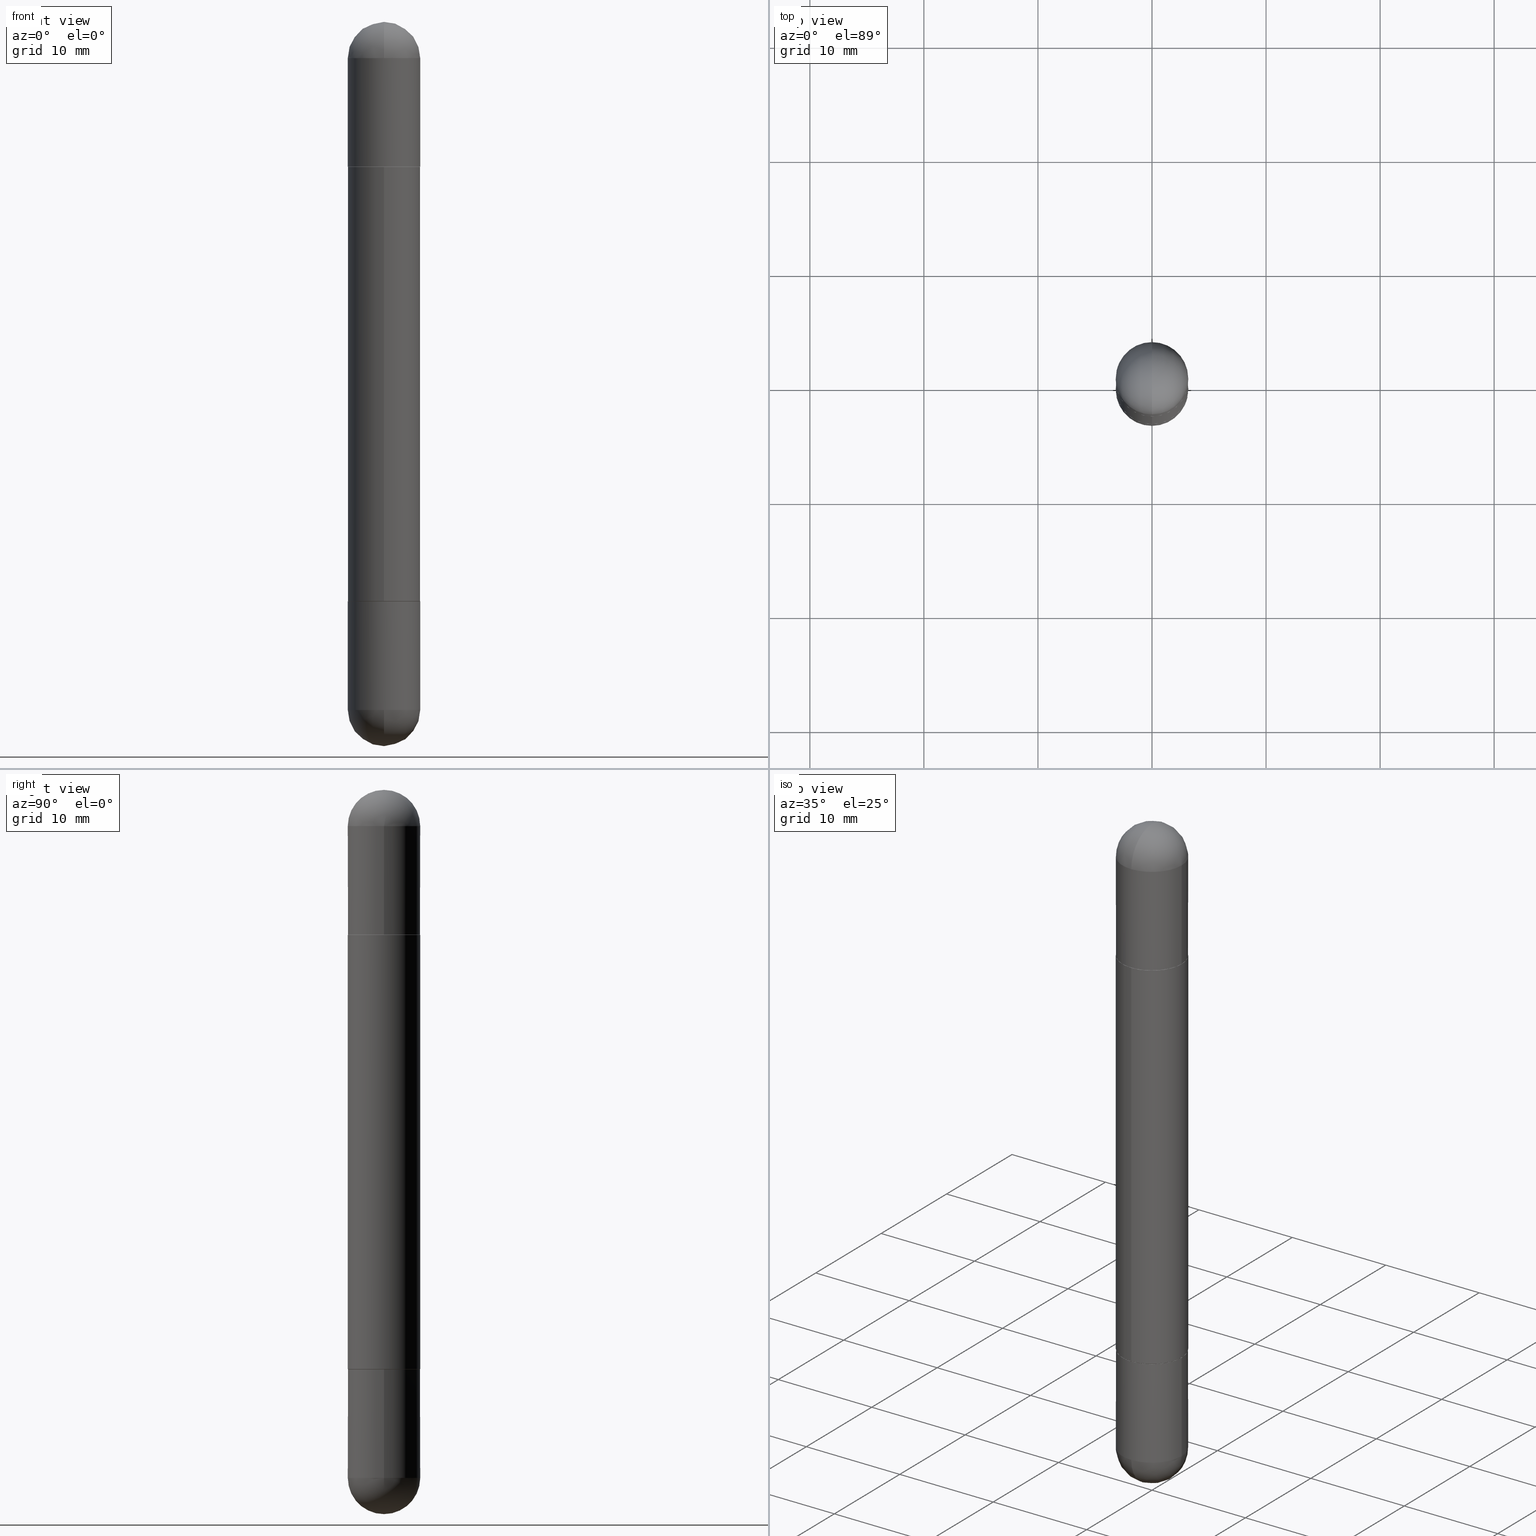
[diagram: canonical four-view strip — front | top / right | iso, engineering-drawing reading convention]
A machine part, canonical four-view strip (front | top / right | iso — engineering-drawing reading convention). The complete STEP part file that produces these views, byte-faithful:
ISO-10303-21;
HEADER;
FILE_DESCRIPTION (( 'STEP AP203' ),
    '1' );
FILE_NAME ('31430.STEP',
    '2024-03-01T12:41:43',
    ( '' ),
    ( '' ),
    'SwSTEP 2.0',
    'SolidWorks 2023',
    '' );
FILE_SCHEMA (( 'CONFIG_CONTROL_DESIGN' ));
ENDSEC;

DATA;
#1 = CARTESIAN_POINT ( 'NONE',  ( 4.891809385690355159E-29, -6.981714248673675172E-15, -0.5000000000000009992 ) ) ;
#2 = EDGE_LOOP ( 'NONE', ( #61, #66, #502, #729, #58 ) ) ;
#3 = DIRECTION ( 'NONE',  ( -6.982962677686265922E-15, -1.000000000000000000, 4.406206441393973340E-15 ) ) ;
#4 = ORIENTED_EDGE ( 'NONE', *, *, #200, .F. ) ;
#5 = DIRECTION ( 'NONE',  ( 1.000000000000000000, -6.982962677686265922E-15, -4.883557194083112901E-29 ) ) ;
#6 = ORIENTED_EDGE ( 'NONE', *, *, #546, .T. ) ;
#7 = LINE ( 'NONE', #504, #235 ) ;
#8 = AXIS2_PLACEMENT_3D ( 'NONE', #799, #601, #483 ) ;
#9 = DIRECTION ( 'NONE',  ( -6.982962677686265922E-15, -1.000000000000000000, -3.304654831045479808E-15 ) ) ;
#10 = ORIENTED_EDGE ( 'NONE', *, *, #217, .F. ) ;
#11 = CIRCLE ( 'NONE', #476, 0.1239999999999999991 ) ;
#12 = VECTOR ( 'NONE', #752, 39.37007874015748143 ) ;
#13 = DIRECTION ( 'NONE',  ( -2.445904692845178140E-29, 3.490857124336838375E-15, 1.000000000000000000 ) ) ;
#14 = VERTEX_POINT ( 'NONE', #494 ) ;
#15 = EDGE_CURVE ( 'NONE', #250, #508, #309, .T. ) ;
#16 = DIRECTION ( 'NONE',  ( 1.000000000000000000, -6.982962677686266711E-15, 4.876176775795935793E-29 ) ) ;
#17 = VERTEX_POINT ( 'NONE', #670 ) ;
#18 = CARTESIAN_POINT ( 'NONE',  ( 8.728703347108403340E-16, 0.1249999999999915623, -0.1250000000000000000 ) ) ;
#19 = PERSON_AND_ORGANIZATION_ROLE ( 'design_supplier' ) ;
#20 = ORIENTED_EDGE ( 'NONE', *, *, #200, .T. ) ;
#21 = EDGE_CURVE ( 'NONE', #317, #435, #512, .T. ) ;
#22 = CLOSED_SHELL ( 'NONE', ( #746, #355, #564, #157, #371 ) ) ;
#23 = CARTESIAN_POINT ( 'NONE',  ( -8.728703347107363030E-16, -0.1250000000000072442, -1.998999999999999000 ) ) ;
#24 = AXIS2_PLACEMENT_3D ( 'NONE', #614, #36, #490 ) ;
#25 = ORIENTED_EDGE ( 'NONE', *, *, #92, .T. ) ;
#26 = FACE_OUTER_BOUND ( 'NONE', #639, .T. ) ;
#27 = PERSON_AND_ORGANIZATION ( #383, #523 ) ;
#28 = VERTEX_POINT ( 'NONE', #423 ) ;
#29 = DIRECTION ( 'NONE',  ( 1.000000000000000000, -6.982962677686266711E-15, 0.000000000000000000 ) ) ;
#30 = EDGE_CURVE ( 'NONE', #454, #146, #715, .T. ) ;
#31 = EDGE_CURVE ( 'NONE', #390, #198, #51, .T. ) ;
#32 = DIRECTION ( 'NONE',  ( -6.982962677686265922E-15, -1.000000000000000000, 4.406206441393973340E-15 ) ) ;
#33 = DIRECTION ( 'NONE',  ( 6.982962677686265922E-15, 1.000000000000000000, 3.551402391763536859E-15 ) ) ;
#34 = AXIS2_PLACEMENT_3D ( 'NONE', #117, #680, #370 ) ;
#35 = AXIS2_PLACEMENT_3D ( 'NONE', #467, #160, #780 ) ;
#36 = DIRECTION ( 'NONE',  ( 0.000000000000000000, 0.000000000000000000, 1.000000000000000000 ) ) ;
#37 = DIRECTION ( 'NONE',  ( 1.000000000000000000, -6.982962677686265922E-15, -4.883557194083112901E-29 ) ) ;
#38 = CARTESIAN_POINT ( 'NONE',  ( 4.889363480997510233E-29, -6.978223391549338005E-15, -0.5010000000000010001 ) ) ;
#39 = ORIENTED_EDGE ( 'NONE', *, *, #442, .F. ) ;
#40 = DIRECTION ( 'NONE',  ( -2.445468806185136877E-29, 3.491481338843145188E-15, 1.000000000000000000 ) ) ;
#41 = EDGE_CURVE ( 'NONE', #437, #155, #277, .T. ) ;
#42 = DIRECTION ( 'NONE',  ( 1.000000000000000000, -6.982962677686265922E-15, -4.883557194083112901E-29 ) ) ;
#43 = DIRECTION ( 'NONE',  ( 2.445468806185136597E-29, -3.491481338843145583E-15, 1.000000000000000000 ) ) ;
#44 = CC_DESIGN_APPROVAL ( #506, ( #126 ) ) ;
#45 = EDGE_CURVE ( 'NONE', #240, #331, #426, .T. ) ;
#46 = DIRECTION ( 'NONE',  ( -6.982962677686265922E-15, -1.000000000000000000, -3.304654831045479808E-15 ) ) ;
#47 = EDGE_CURVE ( 'NONE', #280, #306, #730, .T. ) ;
#48 = CIRCLE ( 'NONE', #501, 0.1250000000000000000 ) ;
#49 = CARTESIAN_POINT ( 'NONE',  ( 5.476868636775814291E-29, -8.766450547892521992E-15, -2.375000000000000000 ) ) ;
#50 = FACE_OUTER_BOUND ( 'NONE', #203, .T. ) ;
#51 = LINE ( 'NONE', #741, #388 ) ;
#52 = ORIENTED_EDGE ( 'NONE', *, *, #92, .F. ) ;
#53 = FACE_OUTER_BOUND ( 'NONE', #794, .T. ) ;
#54 = MANIFOLD_SOLID_BREP ( 'Mirror4[1]', #165 ) ;
#55 = FACE_OUTER_BOUND ( 'NONE', #784, .T. ) ;
#56 = CARTESIAN_POINT ( 'NONE',  ( 8.541320007226054361E-16, 0.1239999999999930186, -0.5000000000000005551 ) ) ;
#57 = CARTESIAN_POINT ( 'NONE',  ( 8.575622497214919324E-16, 0.1249999999999932693, -0.5010000000000006670 ) ) ;
#58 = ORIENTED_EDGE ( 'NONE', *, *, #21, .F. ) ;
#59 = LINE ( 'NONE', #363, #622 ) ;
#60 = CIRCLE ( 'NONE', #296, 0.1250000000000001388 ) ;
#61 = ORIENTED_EDGE ( 'NONE', *, *, #594, .F. ) ;
#62 = DIRECTION ( 'NONE',  ( -2.445468806185136597E-29, 3.491481338843145583E-15, -1.000000000000000000 ) ) ;
#63 = VERTEX_POINT ( 'NONE', #56 ) ;
#64 = AXIS2_PLACEMENT_3D ( 'NONE', #216, #427, #164 ) ;
#65 = DIRECTION ( 'NONE',  ( 4.851104656541460468E-15, 0.7071067811866224018, -0.7071067811864726327 ) ) ;
#66 = ORIENTED_EDGE ( 'NONE', *, *, #30, .T. ) ;
#67 = ADVANCED_FACE ( 'NONE', ( #228 ), #463, .T. ) ;
#68 = DIRECTION ( 'NONE',  ( -2.445904692845177860E-29, 3.490857124336837980E-15, -1.000000000000000000 ) ) ;
#69 = APPLICATION_PROTOCOL_DEFINITION ( 'international standard', 'config_control_design', 1994, #284 ) ;
#70 = ORIENTED_EDGE ( 'NONE', *, *, #381, .F. ) ;
#71 = DIRECTION ( 'NONE',  ( -2.445904692845177860E-29, 3.490857124336837980E-15, -1.000000000000000000 ) ) ;
#72 = DIRECTION ( 'NONE',  ( 2.445904692845178140E-29, -3.490857124336838375E-15, 1.000000000000000000 ) ) ;
#73 = EDGE_LOOP ( 'NONE', ( #4, #458, #170, #10 ) ) ;
#74 = AXIS2_PLACEMENT_3D ( 'NONE', #289, #401, #29 ) ;
#75 = CIRCLE ( 'NONE', #789, 0.1250000000000001943 ) ;
#76 = LINE ( 'NONE', #318, #441 ) ;
#77 = CC_DESIGN_PERSON_AND_ORGANIZATION_ASSIGNMENT ( #552, #247, ( #126 ) ) ;
#78 = EDGE_LOOP ( 'NONE', ( #52, #206, #366, #272 ) ) ;
#79 = EDGE_CURVE ( 'NONE', #331, #711, #606, .T. ) ;
#80 = MANIFOLD_SOLID_BREP ( 'Combine1', #151 ) ;
#81 = DIRECTION ( 'NONE',  ( -2.445904692845178140E-29, 3.490857124336838375E-15, -1.000000000000000000 ) ) ;
#82 = EDGE_CURVE ( 'NONE', #525, #198, #760, .T. ) ;
#83 = EDGE_LOOP ( 'NONE', ( #343, #519, #91, #558 ) ) ;
#84 = DIRECTION ( 'NONE',  ( 2.445468806185136597E-29, -3.491481338843145583E-15, 1.000000000000000000 ) ) ;
#85 = ORIENTED_EDGE ( 'NONE', *, *, #41, .T. ) ;
#86 = CLOSED_SHELL ( 'NONE', ( #766, #815, #749, #781, #365 ) ) ;
#87 = CIRCLE ( 'NONE', #196, 0.1250000000000002776 ) ;
#88 = CARTESIAN_POINT ( 'NONE',  ( 4.891809385690355720E-29, -6.981714248673675961E-15, -0.5000000000000006661 ) ) ;
#89 = VECTOR ( 'NONE', #65, 39.37007874015748143 ) ;
#90 = DATE_AND_TIME ( #221, #287 ) ;
#91 = ORIENTED_EDGE ( 'NONE', *, *, #251, .T. ) ;
#92 = EDGE_CURVE ( 'NONE', #763, #240, #570, .T. ) ;
#93 = DIRECTION ( 'NONE',  ( -2.445468806185136597E-29, 3.491481338843145583E-15, 1.000000000000000000 ) ) ;
#94 = SHAPE_DEFINITION_REPRESENTATION ( #399, #393 ) ;
#95 = ORIENTED_EDGE ( 'NONE', *, *, #241, .F. ) ;
#96 = CARTESIAN_POINT ( 'NONE',  ( 8.575622497214423328E-16, 0.1250000000000001388, -2.500000000000000000 ) ) ;
#97 = CARTESIAN_POINT ( 'NONE',  ( -8.881784197000694204E-16, -0.1250000000000086320, -2.374999999999999556 ) ) ;
#98 = PRODUCT_DEFINITION_FORMATION_WITH_SPECIFIED_SOURCE ( 'ANY', '', #779, .NOT_KNOWN. ) ;
#99 = SPHERICAL_SURFACE ( 'NONE', #232, 0.1250000000000001943 ) ;
#100 = DIRECTION ( 'NONE',  ( -2.445904692845177860E-29, 3.490857124336837980E-15, -1.000000000000000000 ) ) ;
#101 = ORIENTED_EDGE ( 'NONE', *, *, #226, .T. ) ;
#102 = AXIS2_PLACEMENT_3D ( 'NONE', #219, #524, #33 ) ;
#103 = DIRECTION ( 'NONE',  ( -2.445468806185136597E-29, 3.491481338843145583E-15, -1.000000000000000000 ) ) ;
#104 = CARTESIAN_POINT ( 'NONE',  ( -8.728703347107364016E-16, -0.1250000000000072720, -0.5010000000000014442 ) ) ;
#105 = ADVANCED_FACE ( 'NONE', ( #225 ), #795, .T. ) ;
#106 = DIRECTION ( 'NONE',  ( -6.982962677686265922E-15, -1.000000000000000000, -3.304654831045479808E-15 ) ) ;
#107 = CARTESIAN_POINT ( 'NONE',  ( 8.575622497214909463E-16, 0.1249999999999957673, -1.250000000000000222 ) ) ;
#108 = CARTESIAN_POINT ( 'NONE',  ( 4.891809385690355159E-29, -6.981714248673675172E-15, -0.5000000000000009992 ) ) ;
#109 = VECTOR ( 'NONE', #40, 39.37007874015748143 ) ;
#110 = CARTESIAN_POINT ( 'NONE',  ( 4.890937612370273194E-29, -6.982962677686291165E-15, -2.000000000000000000 ) ) ;
#111 = DIRECTION ( 'NONE',  ( 2.438088387897960049E-29, -3.491481338843145188E-15, 1.000000000000000000 ) ) ;
#112 = AXIS2_PLACEMENT_3D ( 'NONE', #485, #754, #436 ) ;
#113 = CIRCLE ( 'NONE', #540, 0.1250000000000000000 ) ;
#114 = CIRCLE ( 'NONE', #224, 0.1250000000000001943 ) ;
#115 = LINE ( 'NONE', #159, #109 ) ;
#116 = LINE ( 'NONE', #481, #660 ) ;
#117 = CARTESIAN_POINT ( 'NONE',  ( 4.891809385690355159E-29, -6.981714248673675172E-15, -0.5000000000000009992 ) ) ;
#118 = DIRECTION ( 'NONE',  ( 1.000000000000000000, -6.982962677686266711E-15, 0.000000000000000000 ) ) ;
#119 = ORIENTED_EDGE ( 'NONE', *, *, #806, .T. ) ;
#120 = DIRECTION ( 'NONE',  ( -6.982962677686265922E-15, -1.000000000000000000, -4.370956789862816416E-15 ) ) ;
#121 = CARTESIAN_POINT ( 'NONE',  ( 5.476868636775814291E-29, -8.766450547892521992E-15, -0.1250000000000004441 ) ) ;
#122 = CARTESIAN_POINT ( 'NONE',  ( 8.728703347108321496E-16, 0.1249999999999930195, -0.5000000000000001110 ) ) ;
#123 = ORIENTED_EDGE ( 'NONE', *, *, #190, .F. ) ;
#124 = LINE ( 'NONE', #493, #12 ) ;
#125 = DIRECTION ( 'NONE',  ( 1.000000000000000000, -6.982962677686270655E-15, 0.000000000000000000 ) ) ;
#126 = PRODUCT_DEFINITION ( 'UNKNOWN', '', #98, #470 ) ;
#127 = VERTEX_POINT ( 'NONE', #655 ) ;
#128 = AXIS2_PLACEMENT_3D ( 'NONE', #772, #700, #634 ) ;
#129 = DIRECTION ( 'NONE',  ( -2.445468806185136597E-29, 3.491481338843145583E-15, 1.000000000000000000 ) ) ;
#130 = PERSON_AND_ORGANIZATION ( #383, #523 ) ;
#131 = ORIENTED_EDGE ( 'NONE', *, *, #391, .T. ) ;
#132 = ORIENTED_EDGE ( 'NONE', *, *, #177, .T. ) ;
#133 = FACE_OUTER_BOUND ( 'NONE', #83, .T. ) ;
#134 = APPROVAL_ROLE ( '' ) ;
#135 = ORIENTED_EDGE ( 'NONE', *, *, #251, .F. ) ;
#136 = DIRECTION ( 'NONE',  ( 2.445904692845178140E-29, -3.490857124336838375E-15, 1.000000000000000000 ) ) ;
#137 = CIRCLE ( 'NONE', #461, 0.1250000000000001943 ) ;
#138 = ORIENTED_EDGE ( 'NONE', *, *, #313, .F. ) ;
#139 = CIRCLE ( 'NONE', #555, 0.1250000000000000000 ) ;
#140 = DIRECTION ( 'NONE',  ( 1.000000000000000000, -6.982962677686270655E-15, 0.000000000000000000 ) ) ;
#141 = ADVANCED_FACE ( 'NONE', ( #429 ), #364, .F. ) ;
#142 = PERSON_AND_ORGANIZATION ( #383, #523 ) ;
#143 = ORIENTED_EDGE ( 'NONE', *, *, #659, .F. ) ;
#144 = CARTESIAN_POINT ( 'NONE',  ( 4.891809385690355159E-29, -6.981714248673675172E-15, -1.999999999999999778 ) ) ;
#145 = COORDINATED_UNIVERSAL_TIME_OFFSET ( 5, 0, .BEHIND. ) ;
#146 = VERTEX_POINT ( 'NONE', #97 ) ;
#147 = FACE_OUTER_BOUND ( 'NONE', #283, .T. ) ;
#148 = APPROVAL_PERSON_ORGANIZATION ( #397, #547, #641 ) ;
#149 = PERSON_AND_ORGANIZATION ( #383, #523 ) ;
#150 = ORIENTED_EDGE ( 'NONE', *, *, #618, .T. ) ;
#151 = CLOSED_SHELL ( 'NONE', ( #285, #303, #396, #322, #67, #479, #610, #335 ) ) ;
#152 = PLANE ( 'NONE',  #745 ) ;
#153 = AXIS2_PLACEMENT_3D ( 'NONE', #549, #244, #537 ) ;
#154 = CALENDAR_DATE ( 2024, 1, 3 ) ;
#155 = VERTEX_POINT ( 'NONE', #347 ) ;
#156 = CARTESIAN_POINT ( 'NONE',  ( -8.658873720330480207E-16, -0.1240000000000069796, -1.999999999999999112 ) ) ;
#157 = ADVANCED_FACE ( 'NONE', ( #595 ), #482, .F. ) ;
#158 = CARTESIAN_POINT ( 'NONE',  ( 4.891809385690355159E-29, -6.981714248673675172E-15, -1.999999999999999778 ) ) ;
#159 = CARTESIAN_POINT ( 'NONE',  ( 0.1250000000000000000, -8.728703347107833388E-16, 6.095220969744919741E-30 ) ) ;
#160 = DIRECTION ( 'NONE',  ( -2.445468806185136597E-29, 3.491481338843145583E-15, -1.000000000000000000 ) ) ;
#161 = VERTEX_POINT ( 'NONE', #392 ) ;
#162 = AXIS2_PLACEMENT_3D ( 'NONE', #316, #758, #367 ) ;
#163 = DIRECTION ( 'NONE',  ( -6.982962677686265922E-15, -1.000000000000000000, 4.406206441393973340E-15 ) ) ;
#164 = DIRECTION ( 'NONE',  ( 1.000000000000000000, -6.982962677686270655E-15, 0.000000000000000000 ) ) ;
#165 = CLOSED_SHELL ( 'NONE', ( #683, #207, #141, #259, #531, #174 ) ) ;
#166 = EDGE_CURVE ( 'NONE', #464, #161, #647, .T. ) ;
#167 = AXIS2_PLACEMENT_3D ( 'NONE', #587, #651, #598 ) ;
#168 = DIRECTION ( 'NONE',  ( 2.445468806185136597E-29, -3.491481338843145583E-15, 1.000000000000000000 ) ) ;
#169 = CYLINDRICAL_SURFACE ( 'NONE', #326, 0.1250000000000001388 ) ;
#170 = ORIENTED_EDGE ( 'NONE', *, *, #348, .T. ) ;
#171 = DIRECTION ( 'NONE',  ( -4.937700262165053702E-15, -0.7071067811866175168, 0.7071067811864775177 ) ) ;
#172 = FACE_OUTER_BOUND ( 'NONE', #446, .T. ) ;
#173 = ORIENTED_EDGE ( 'NONE', *, *, #82, .T. ) ;
#174 = ADVANCED_FACE ( 'NONE', ( #565 ), #201, .T. ) ;
#175 = CARTESIAN_POINT ( 'NONE',  ( -8.658873720330480207E-16, -0.1240000000000069796, -0.5000000000000013323 ) ) ;
#176 = APPROVAL_PERSON_ORGANIZATION ( #632, #506, #134 ) ;
#177 = EDGE_CURVE ( 'NONE', #650, #28, #323, .T. ) ;
#178 = DIRECTION ( 'NONE',  ( -0.000000000000000000, -0.000000000000000000, -1.000000000000000000 ) ) ;
#179 = CARTESIAN_POINT ( 'NONE',  ( 4.890937612370273194E-29, -6.982962677686291165E-15, -0.5000000000000006661 ) ) ;
#180 = AXIS2_PLACEMENT_3D ( 'NONE', #121, #291, #532 ) ;
#181 = COORDINATED_UNIVERSAL_TIME_OFFSET ( 5, 0, .BEHIND. ) ;
#182 = ORIENTED_EDGE ( 'NONE', *, *, #41, .F. ) ;
#183 = DIRECTION ( 'NONE',  ( -6.982962677686265133E-15, -1.000000000000000000, 0.000000000000000000 ) ) ;
#184 = DIRECTION ( 'NONE',  ( 1.000000000000000000, -6.982962677686270655E-15, 0.000000000000000000 ) ) ;
#185 = DIMENSIONAL_EXPONENTS ( 1.000000000000000000, 0.000000000000000000, 0.000000000000000000, 0.000000000000000000, 0.000000000000000000, 0.000000000000000000, 0.000000000000000000 ) ;
#186 =( LENGTH_UNIT ( ) NAMED_UNIT ( * ) SI_UNIT ( $, .METRE. ) );
#187 = ORIENTED_EDGE ( 'NONE', *, *, #687, .F. ) ;
#188 = FACE_OUTER_BOUND ( 'NONE', #474, .T. ) ;
#189 = DIRECTION ( 'NONE',  ( 1.000000000000000000, -6.982962677686270655E-15, 0.000000000000000000 ) ) ;
#190 = EDGE_CURVE ( 'NONE', #306, #280, #11, .T. ) ;
#191 = PLANE ( 'NONE',  #424 ) ;
#192 = ORIENTED_EDGE ( 'NONE', *, *, #195, .T. ) ;
#193 = AXIS2_PLACEMENT_3D ( 'NONE', #681, #62, #118 ) ;
#194 = CARTESIAN_POINT ( 'NONE',  ( 8.846257060213744265E-16, 0.1239999999999930186, -2.000000000000000444 ) ) ;
#195 = EDGE_CURVE ( 'NONE', #198, #525, #465, .T. ) ;
#196 = AXIS2_PLACEMENT_3D ( 'NONE', #330, #445, #375 ) ;
#197 = FACE_OUTER_BOUND ( 'NONE', #563, .T. ) ;
#198 = VERTEX_POINT ( 'NONE', #775 ) ;
#199 = AXIS2_PLACEMENT_3D ( 'NONE', #249, #477, #46 ) ;
#200 = EDGE_CURVE ( 'NONE', #63, #17, #761, .T. ) ;
#201 = CYLINDRICAL_SURFACE ( 'NONE', #802, 0.1250000000000001388 ) ;
#202 =( NAMED_UNIT ( * ) SI_UNIT ( $, .STERADIAN. ) SOLID_ANGLE_UNIT ( ) );
#203 = EDGE_LOOP ( 'NONE', ( #787, #339 ) ) ;
#204 = CYLINDRICAL_SURFACE ( 'NONE', #776, 0.1250000000000000000 ) ;
#205 = DATE_AND_TIME ( #718, #374 ) ;
#206 = ORIENTED_EDGE ( 'NONE', *, *, #510, .T. ) ;
#207 = ADVANCED_FACE ( 'NONE', ( #133 ), #405, .T. ) ;
#208 = CARTESIAN_POINT ( 'NONE',  ( -8.575622497213856334E-16, -0.1250000000000086320, -0.1250000000000008882 ) ) ;
#209 = CC_DESIGN_APPROVAL ( #547, ( #631 ) ) ;
#210 = COORDINATED_UNIVERSAL_TIME_OFFSET ( 5, 0, .BEHIND. ) ;
#211 = EDGE_LOOP ( 'NONE', ( #719, #212 ) ) ;
#212 = ORIENTED_EDGE ( 'NONE', *, *, #536, .T. ) ;
#213 = AXIS2_PLACEMENT_3D ( 'NONE', #737, #178, #554 ) ;
#214 = LINE ( 'NONE', #455, #689 ) ;
#215 = ORIENTED_EDGE ( 'NONE', *, *, #195, .F. ) ;
#216 = CARTESIAN_POINT ( 'NONE',  ( 5.807988414689700538E-29, -8.292268179752471696E-15, -0.1250000000000004441 ) ) ;
#217 = EDGE_CURVE ( 'NONE', #17, #464, #76, .T. ) ;
#218 = EDGE_LOOP ( 'NONE', ( #270, #258, #368, #334, #173 ) ) ;
#219 = CARTESIAN_POINT ( 'NONE',  ( 5.476868636775814291E-29, -8.766450547892521992E-15, -0.1250000000000004441 ) ) ;
#220 = CIRCLE ( 'NONE', #773, 0.1250000000000001943 ) ;
#221 = CALENDAR_DATE ( 2024, 1, 3 ) ;
#222 = VERTEX_POINT ( 'NONE', #500 ) ;
#223 = CYLINDRICAL_SURFACE ( 'NONE', #263, 0.1250000000000001388 ) ;
#224 = AXIS2_PLACEMENT_3D ( 'NONE', #747, #295, #183 ) ;
#225 = FACE_OUTER_BOUND ( 'NONE', #2, .T. ) ;
#226 = EDGE_CURVE ( 'NONE', #28, #642, #7, .T. ) ;
#227 = DIRECTION ( 'NONE',  ( -2.445904692845178140E-29, 3.490857124336838375E-15, -1.000000000000000000 ) ) ;
#228 = FACE_OUTER_BOUND ( 'NONE', #492, .T. ) ;
#229 = LINE ( 'NONE', #302, #740 ) ;
#230 = EDGE_CURVE ( 'NONE', #280, #155, #214, .T. ) ;
#231 = CARTESIAN_POINT ( 'NONE',  ( -0.1250000000000000000, -6.780053178997941168E-15, -0.1250000000000004441 ) ) ;
#232 = AXIS2_PLACEMENT_3D ( 'NONE', #349, #37, #796 ) ;
#233 = CARTESIAN_POINT ( 'NONE',  ( -8.728703347107444874E-16, -0.1250000000000044964, -1.250000000000000222 ) ) ;
#234 = DIRECTION ( 'NONE',  ( 2.445468806185136597E-29, -3.491481338843145583E-15, 1.000000000000000000 ) ) ;
#235 = VECTOR ( 'NONE', #68, 39.37007874015748143 ) ;
#236 = FACE_OUTER_BOUND ( 'NONE', #478, .T. ) ;
#237 = FACE_OUTER_BOUND ( 'NONE', #78, .T. ) ;
#238 = DIRECTION ( 'NONE',  ( -1.000000000000000000, 6.982962677686265922E-15, -4.883557194083112901E-29 ) ) ;
#239 = CARTESIAN_POINT ( 'NONE',  ( 5.476868636775814291E-29, -8.766450547892521992E-15, -0.1250000000000004441 ) ) ;
#240 = VERTEX_POINT ( 'NONE', #208 ) ;
#241 = EDGE_CURVE ( 'NONE', #771, #782, #764, .T. ) ;
#242 = ORIENTED_EDGE ( 'NONE', *, *, #635, .T. ) ;
#243 = AXIS2_PLACEMENT_3D ( 'NONE', #108, #358, #106 ) ;
#244 = DIRECTION ( 'NONE',  ( 2.445468806185136597E-29, -3.491481338843145583E-15, 1.000000000000000000 ) ) ;
#245 = DIRECTION ( 'NONE',  ( 1.000000000000000000, -6.982962677686266711E-15, 4.876176775795935793E-29 ) ) ;
#246 = CIRCLE ( 'NONE', #64, 0.1250000000000000000 ) ;
#247 = PERSON_AND_ORGANIZATION_ROLE ( 'creator' ) ;
#248 = EDGE_LOOP ( 'NONE', ( #380, #404, #593, #85 ) ) ;
#249 = CARTESIAN_POINT ( 'NONE',  ( 4.891809385690355159E-29, -6.981714248673675172E-15, -0.5000000000000009992 ) ) ;
#250 = VERTEX_POINT ( 'NONE', #496 ) ;
#251 = EDGE_CURVE ( 'NONE', #782, #28, #87, .T. ) ;
#252 = DIRECTION ( 'NONE',  ( -1.000000000000000000, 0.000000000000000000, 0.000000000000000000 ) ) ;
#253 = ORIENTED_EDGE ( 'NONE', *, *, #381, .T. ) ;
#254 = ADVANCED_FACE ( 'NONE', ( #328 ), #204, .T. ) ;
#255 = CARTESIAN_POINT ( 'NONE',  ( 4.891809385690355159E-29, -6.981714248673675172E-15, -0.5000000000000009992 ) ) ;
#256 = ORIENTED_EDGE ( 'NONE', *, *, #569, .T. ) ;
#257 = DIRECTION ( 'NONE',  ( 1.000000000000000000, -6.982962677686270655E-15, 0.000000000000000000 ) ) ;
#258 = ORIENTED_EDGE ( 'NONE', *, *, #534, .F. ) ;
#259 = ADVANCED_FACE ( 'NONE', ( #577 ), #269, .F. ) ;
#260 = LOCAL_TIME ( 7, 41, 43.00000000000000000, #181 ) ;
#261 = CARTESIAN_POINT ( 'NONE',  ( 4.889363480997510233E-29, -6.978223391549338005E-15, -0.5010000000000010001 ) ) ;
#262 = AXIS2_PLACEMENT_3D ( 'NONE', #619, #812, #685 ) ;
#263 = AXIS2_PLACEMENT_3D ( 'NONE', #592, #786, #337 ) ;
#264 = VERTEX_POINT ( 'NONE', #18 ) ;
#265 = AXIS2_PLACEMENT_3D ( 'NONE', #353, #419, #308 ) ;
#266 = DIRECTION ( 'NONE',  ( -6.982962677686265922E-15, -1.000000000000000000, -3.304654831045479808E-15 ) ) ;
#267 = LENGTH_MEASURE_WITH_UNIT ( LENGTH_MEASURE( 0.02539999999999999897 ), #186 );
#268 = EDGE_LOOP ( 'NONE', ( #798, #288 ) ) ;
#269 = PLANE ( 'NONE',  #672 ) ;
#270 = ORIENTED_EDGE ( 'NONE', *, *, #31, .F. ) ;
#271 = APPROVAL_DATE_TIME ( #453, #801 ) ;
#272 = ORIENTED_EDGE ( 'NONE', *, *, #583, .T. ) ;
#273 = CARTESIAN_POINT ( 'NONE',  ( 0.000000000000000000, 0.000000000000000000, -2.500000000000000444 ) ) ;
#274 = LOCAL_TIME ( 7, 41, 43.00000000000000000, #210 ) ;
#275 = COORDINATED_UNIVERSAL_TIME_OFFSET ( 5, 0, .BEHIND. ) ;
#276 = ORIENTED_EDGE ( 'NONE', *, *, #806, .F. ) ;
#277 = CIRCLE ( 'NONE', #581, 0.1250000000000002776 ) ;
#278 = EDGE_CURVE ( 'NONE', #14, #146, #360, .T. ) ;
#279 = CARTESIAN_POINT ( 'NONE',  ( -0.1250000000000000000, -6.749437009019255804E-15, -2.000000000000000000 ) ) ;
#280 = VERTEX_POINT ( 'NONE', #194 ) ;
#281 = FACE_OUTER_BOUND ( 'NONE', #329, .T. ) ;
#282 = EDGE_CURVE ( 'NONE', #495, #341, #113, .T. ) ;
#283 = EDGE_LOOP ( 'NONE', ( #703, #769, #320, #499, #150 ) ) ;
#284 = APPLICATION_CONTEXT ( 'configuration controlled 3d designs of mechanical parts and assemblies' ) ;
#285 = ADVANCED_FACE ( 'NONE', ( #626 ), #572, .T. ) ;
#286 = FACE_OUTER_BOUND ( 'NONE', #409, .T. ) ;
#287 = LOCAL_TIME ( 7, 41, 43.00000000000000000, #342 ) ;
#288 = ORIENTED_EDGE ( 'NONE', *, *, #442, .T. ) ;
#289 = CARTESIAN_POINT ( 'NONE',  ( 0.000000000000000000, 0.000000000000000000, -2.500000000000000444 ) ) ;
#290 = ORIENTED_EDGE ( 'NONE', *, *, #450, .T. ) ;
#291 = DIRECTION ( 'NONE',  ( 1.000000000000000000, -6.860497997771530774E-15, -4.840798879624142912E-29 ) ) ;
#292 = CARTESIAN_POINT ( 'NONE',  ( 8.507017517237187427E-16, 0.1239999999999930186, -0.5000000000000005551 ) ) ;
#293 = DIRECTION ( 'NONE',  ( 1.000000000000000000, -6.982962677686270655E-15, 0.000000000000000000 ) ) ;
#294 = CARTESIAN_POINT ( 'NONE',  ( 5.787897026856327965E-29, -9.195231672753244292E-15, -2.561107494060246644E-16 ) ) ;
#295 = DIRECTION ( 'NONE',  ( -1.000000000000000000, 6.982962677686265922E-15, 4.883557194083112340E-29 ) ) ;
#296 = AXIS2_PLACEMENT_3D ( 'NONE', #750, #372, #252 ) ;
#297 = CARTESIAN_POINT ( 'NONE',  ( 0.000000000000000000, 0.000000000000000000, -2.500000000000000444 ) ) ;
#298 = DIRECTION ( 'NONE',  ( -6.982962677686265922E-15, -1.000000000000000000, -3.304654831045479808E-15 ) ) ;
#299 = AXIS2_PLACEMENT_3D ( 'NONE', #542, #416, #668 ) ;
#300 = DIRECTION ( 'NONE',  ( 6.860497997771529196E-15, 1.000000000000000000, 0.000000000000000000 ) ) ;
#301 = CARTESIAN_POINT ( 'NONE',  ( 5.807988414689700538E-29, -8.292268179752471696E-15, -0.1250000000000004441 ) ) ;
#302 = CARTESIAN_POINT ( 'NONE',  ( 0.1250000000000000000, -8.728703347107833388E-16, -2.500000000000000444 ) ) ;
#303 = ADVANCED_FACE ( 'NONE', ( #344 ), #223, .T. ) ;
#304 = CARTESIAN_POINT ( 'NONE',  ( 0.1250000000000000000, -7.855833012397075293E-15, -0.5000000000000006661 ) ) ;
#305 = CARTESIAN_POINT ( 'NONE',  ( -0.1250000000000000000, 8.575622497214414453E-16, -2.500000000000000444 ) ) ;
#306 = VERTEX_POINT ( 'NONE', #156 ) ;
#307 = CIRCLE ( 'NONE', #8, 0.1250000000000000000 ) ;
#308 = DIRECTION ( 'NONE',  ( -1.000000000000000000, 6.982962677686265922E-15, -4.876176775795935793E-29 ) ) ;
#309 = LINE ( 'NONE', #305, #742 ) ;
#310 = AXIS2_PLACEMENT_3D ( 'NONE', #468, #411, #245 ) ;
#311 =( CONVERSION_BASED_UNIT ( 'INCH', #267 ) LENGTH_UNIT ( ) NAMED_UNIT ( #185 ) );
#312 = ORIENTED_EDGE ( 'NONE', *, *, #45, .T. ) ;
#313 = EDGE_CURVE ( 'NONE', #341, #454, #528, .T. ) ;
#314 = DIRECTION ( 'NONE',  ( -6.982962677686265922E-15, -1.000000000000000000, -3.278217592397108762E-15 ) ) ;
#315 = ORIENTED_EDGE ( 'NONE', *, *, #348, .F. ) ;
#316 = CARTESIAN_POINT ( 'NONE',  ( 0.000000000000000000, 0.000000000000000000, 0.000000000000000000 ) ) ;
#317 = VERTEX_POINT ( 'NONE', #279 ) ;
#318 = CARTESIAN_POINT ( 'NONE',  ( -8.658873720330480207E-16, -0.1240000000000069796, -0.5000000000000013323 ) ) ;
#319 = FACE_OUTER_BOUND ( 'NONE', #624, .T. ) ;
#320 = ORIENTED_EDGE ( 'NONE', *, *, #79, .F. ) ;
#321 = AXIS2_PLACEMENT_3D ( 'NONE', #414, #809, #362 ) ;
#322 = ADVANCED_FACE ( 'NONE', ( #26 ), #152, .F. ) ;
#323 = LINE ( 'NONE', #637, #816 ) ;
#324 = AXIS2_PLACEMENT_3D ( 'NONE', #447, #451, #140 ) ;
#325 = ORIENTED_EDGE ( 'NONE', *, *, #625, .F. ) ;
#326 = AXIS2_PLACEMENT_3D ( 'NONE', #817, #433, #120 ) ;
#327 = MANIFOLD_SOLID_BREP ( 'Mirror4[3]', #86 ) ;
#328 = FACE_OUTER_BOUND ( 'NONE', #373, .T. ) ;
#329 = EDGE_LOOP ( 'NONE', ( #385, #25, #312, #568 ) ) ;
#330 = CARTESIAN_POINT ( 'NONE',  ( 4.889363480997510233E-29, -6.978223391549338005E-15, -0.5010000000000010001 ) ) ;
#331 = VERTEX_POINT ( 'NONE', #340 ) ;
#332 = AXIS2_PLACEMENT_3D ( 'NONE', #603, #43, #257 ) ;
#333 = CARTESIAN_POINT ( 'NONE',  ( 5.807988414689700538E-29, -8.292268179752471696E-15, -0.1250000000000004441 ) ) ;
#334 = ORIENTED_EDGE ( 'NONE', *, *, #659, .T. ) ;
#335 = ADVANCED_FACE ( 'NONE', ( #286 ), #407, .F. ) ;
#336 = AXIS2_PLACEMENT_3D ( 'NONE', #738, #111, #705 ) ;
#337 = DIRECTION ( 'NONE',  ( -6.982962677686265922E-15, -1.000000000000000000, -4.370956789862816416E-15 ) ) ;
#338 = PERSON_AND_ORGANIZATION_ROLE ( 'creator' ) ;
#339 = ORIENTED_EDGE ( 'NONE', *, *, #21, .T. ) ;
#340 = CARTESIAN_POINT ( 'NONE',  ( 0.1250000000000000000, -8.510485763430165164E-15, -0.1250000000000004441 ) ) ;
#341 = VERTEX_POINT ( 'NONE', #584 ) ;
#342 = COORDINATED_UNIVERSAL_TIME_OFFSET ( 5, 0, .BEHIND. ) ;
#343 = ORIENTED_EDGE ( 'NONE', *, *, #536, .F. ) ;
#344 = FACE_OUTER_BOUND ( 'NONE', #695, .T. ) ;
#345 = MANIFOLD_SOLID_BREP ( 'Mirror4[4]', #22 ) ;
#346 = AXIS2_PLACEMENT_3D ( 'NONE', #354, #805, #163 ) ;
#347 = CARTESIAN_POINT ( 'NONE',  ( 8.575622497214732956E-16, 0.1249999999999932693, -1.999000000000000110 ) ) ;
#348 = EDGE_CURVE ( 'NONE', #161, #464, #428, .T. ) ;
#349 = CARTESIAN_POINT ( 'NONE',  ( 5.476868636775814291E-29, -8.766450547892521992E-15, -0.1250000000000004441 ) ) ;
#350 = AXIS2_PLACEMENT_3D ( 'NONE', #658, #227, #645 ) ;
#351 = DIRECTION ( 'NONE',  ( -2.445904692845178140E-29, 3.490857124336838375E-15, 1.000000000000000000 ) ) ;
#352 = CARTESIAN_POINT ( 'NONE',  ( 5.476868636775814291E-29, -8.766450547892521992E-15, -2.375000000000000000 ) ) ;
#353 = CARTESIAN_POINT ( 'NONE',  ( 8.728703347108321496E-16, 0.1249999999999930195, -2.000000000000000444 ) ) ;
#354 = CARTESIAN_POINT ( 'NONE',  ( 4.891809385690355159E-29, -6.981714248673675172E-15, -1.999999999999999778 ) ) ;
#355 = ADVANCED_FACE ( 'NONE', ( #281 ), #580, .T. ) ;
#356 = CARTESIAN_POINT ( 'NONE',  ( 5.476868636775814291E-29, -8.766450547892521992E-15, -0.1250000000000004441 ) ) ;
#357 = VECTOR ( 'NONE', #533, 39.37007874015748143 ) ;
#358 = DIRECTION ( 'NONE',  ( 2.445904692845178140E-29, -3.490857124336838375E-15, 1.000000000000000000 ) ) ;
#359 = DIRECTION ( 'NONE',  ( 1.000000000000000000, -6.982962677686270655E-15, 0.000000000000000000 ) ) ;
#360 = CIRCLE ( 'NONE', #788, 0.1250000000000001943 ) ;
#361 = ORIENTED_EDGE ( 'NONE', *, *, #282, .F. ) ;
#362 = DIRECTION ( 'NONE',  ( -6.982962677686265922E-15, -1.000000000000000000, -3.278217592397108762E-15 ) ) ;
#363 = CARTESIAN_POINT ( 'NONE',  ( 0.1250000000000000000, -8.728703347107833388E-16, -2.500000000000000444 ) ) ;
#364 = PLANE ( 'NONE',  #24 ) ;
#365 = ADVANCED_FACE ( 'NONE', ( #462 ), #783, .T. ) ;
#366 = ORIENTED_EDGE ( 'NONE', *, *, #438, .T. ) ;
#367 = DIRECTION ( 'NONE',  ( 1.000000000000000000, 0.000000000000000000, 0.000000000000000000 ) ) ;
#368 = ORIENTED_EDGE ( 'NONE', *, *, #382, .F. ) ;
#369 = CARTESIAN_POINT ( 'NONE',  ( 0.1250000000000000000, -8.510485763430165164E-15, -2.375000000000000000 ) ) ;
#370 = DIRECTION ( 'NONE',  ( -6.982962677686265922E-15, -1.000000000000000000, -3.304654831045479808E-15 ) ) ;
#371 = ADVANCED_FACE ( 'NONE', ( #147 ), #410, .T. ) ;
#372 = DIRECTION ( 'NONE',  ( -0.000000000000000000, -0.000000000000000000, -1.000000000000000000 ) ) ;
#373 = EDGE_LOOP ( 'NONE', ( #559, #688, #611, #574, #616 ) ) ;
#374 = LOCAL_TIME ( 7, 41, 43.00000000000000000, #275 ) ;
#375 = DIRECTION ( 'NONE',  ( -6.982962677686265922E-15, -1.000000000000000000, -3.278217592397108762E-15 ) ) ;
#376 = CIRCLE ( 'NONE', #389, 0.1250000000000000000 ) ;
#377 = ORIENTED_EDGE ( 'NONE', *, *, #230, .F. ) ;
#378 = ORIENTED_EDGE ( 'NONE', *, *, #753, .F. ) ;
#379 = DIRECTION ( 'NONE',  ( 1.000000000000000000, -6.982962677686270655E-15, 0.000000000000000000 ) ) ;
#380 = ORIENTED_EDGE ( 'NONE', *, *, #450, .F. ) ;
#381 = EDGE_CURVE ( 'NONE', #390, #553, #376, .T. ) ;
#382 = EDGE_CURVE ( 'NONE', #127, #264, #139, .T. ) ;
#383 = PERSON ( 'UNSPECIFIED', 'UNSPECIFIED', 'UNSPECIFIED', ('UNSPECIFIED'), ('UNSPECIFIED'), ('UNSPECIFIED') ) ;
#384 = CARTESIAN_POINT ( 'NONE',  ( 8.507017517237187427E-16, 0.1239999999999930186, -0.5000000000000005551 ) ) ;
#385 = ORIENTED_EDGE ( 'NONE', *, *, #510, .F. ) ;
#386 = CONICAL_SURFACE ( 'NONE', #346, 0.1239999999999999991, 0.7853981633975507526 ) ;
#387 = DIRECTION ( 'NONE',  ( -2.445904692845178140E-29, 3.490857124336838375E-15, -1.000000000000000000 ) ) ;
#388 = VECTOR ( 'NONE', #675, 39.37007874015748143 ) ;
#389 = AXIS2_PLACEMENT_3D ( 'NONE', #720, #84, #516 ) ;
#390 = VERTEX_POINT ( 'NONE', #231 ) ;
#391 = EDGE_CURVE ( 'NONE', #782, #444, #473, .T. ) ;
#392 = CARTESIAN_POINT ( 'NONE',  ( 8.575622497214919324E-16, 0.1249999999999932693, -0.5010000000000006670 ) ) ;
#393 = ADVANCED_BREP_SHAPE_REPRESENTATION ( '31430', ( #599, #54, #327, #345, #80, #162 ), #449 ) ;
#394 = ORIENTED_EDGE ( 'NONE', *, *, #230, .T. ) ;
#395 = LINE ( 'NONE', #471, #731 ) ;
#396 = ADVANCED_FACE ( 'NONE', ( #793 ), #701, .T. ) ;
#397 = PERSON_AND_ORGANIZATION ( #383, #523 ) ;
#398 = ORIENTED_EDGE ( 'NONE', *, *, #635, .F. ) ;
#399 = PRODUCT_DEFINITION_SHAPE ( 'NONE', 'NONE',  #126 ) ;
#400 = AXIS2_PLACEMENT_3D ( 'NONE', #297, #666, #539 ) ;
#401 = DIRECTION ( 'NONE',  ( -2.445468806185136597E-29, 3.491481338843145583E-15, -1.000000000000000000 ) ) ;
#402 = AXIS2_PLACEMENT_3D ( 'NONE', #179, #434, #125 ) ;
#403 = SECURITY_CLASSIFICATION_LEVEL ( 'unclassified' ) ;
#404 = ORIENTED_EDGE ( 'NONE', *, *, #166, .F. ) ;
#405 = CONICAL_SURFACE ( 'NONE', #440, 0.1239999999999999991, 0.7853981633975507526 ) ;
#406 = AXIS2_PLACEMENT_3D ( 'NONE', #110, #733, #359 ) ;
#407 = PLANE ( 'NONE',  #167 ) ;
#408 = APPROVAL_ROLE ( '' ) ;
#409 = EDGE_LOOP ( 'NONE', ( #123, #751 ) ) ;
#410 = CYLINDRICAL_SURFACE ( 'NONE', #35, 0.1250000000000000000 ) ;
#411 = DIRECTION ( 'NONE',  ( -2.445468806185136597E-29, 3.491481338843145583E-15, 1.000000000000000000 ) ) ;
#412 = CARTESIAN_POINT ( 'NONE',  ( 0.000000000000000000, 0.000000000000000000, -2.500000000000000444 ) ) ;
#413 = DIRECTION ( 'NONE',  ( -6.982962677686265922E-15, -1.000000000000000000, -3.278217592397108762E-15 ) ) ;
#414 = CARTESIAN_POINT ( 'NONE',  ( 4.889363480997510233E-29, -6.978223391549338005E-15, -0.5010000000000010001 ) ) ;
#415 = CLOSED_SHELL ( 'NONE', ( #254, #600, #521, #487, #105 ) ) ;
#416 = DIRECTION ( 'NONE',  ( -2.445904692845178140E-29, 3.490857124336838375E-15, 1.000000000000000000 ) ) ;
#417 = CC_DESIGN_DATE_AND_TIME_ASSIGNMENT ( #777, #707, ( #126 ) ) ;
#418 = CYLINDRICAL_SURFACE ( 'NONE', #400, 0.1250000000000001388 ) ;
#419 = DIRECTION ( 'NONE',  ( 2.438088387897960049E-29, -3.491481338843145188E-15, -1.000000000000000000 ) ) ;
#420 = EDGE_CURVE ( 'NONE', #464, #437, #395, .T. ) ;
#421 = DIRECTION ( 'NONE',  ( 1.000000000000000000, -6.860497997771530774E-15, -4.840798879624142912E-29 ) ) ;
#422 = CARTESIAN_POINT ( 'NONE',  ( 5.476868636775814291E-29, -8.766450547892521992E-15, -2.375000000000000000 ) ) ;
#423 = CARTESIAN_POINT ( 'NONE',  ( -8.728703347107364016E-16, -0.1250000000000072720, -0.5010000000000014442 ) ) ;
#424 = AXIS2_PLACEMENT_3D ( 'NONE', #122, #573, #567 ) ;
#425 = CARTESIAN_POINT ( 'NONE',  ( 5.807988414689700538E-29, -8.292268179752471696E-15, -2.375000000000000000 ) ) ;
#426 = CIRCLE ( 'NONE', #538, 0.1250000000000000000 ) ;
#427 = DIRECTION ( 'NONE',  ( 2.445468806185136597E-29, -3.491481338843145583E-15, 1.000000000000000000 ) ) ;
#428 = CIRCLE ( 'NONE', #489, 0.1250000000000002776 ) ;
#429 = FACE_OUTER_BOUND ( 'NONE', #268, .T. ) ;
#430 = AXIS2_PLACEMENT_3D ( 'NONE', #422, #544, #613 ) ;
#431 = CALENDAR_DATE ( 2024, 1, 3 ) ;
#432 = ORIENTED_EDGE ( 'NONE', *, *, #166, .T. ) ;
#433 = DIRECTION ( 'NONE',  ( -2.445904692845178140E-29, 3.490857124336838375E-15, -1.000000000000000000 ) ) ;
#434 = DIRECTION ( 'NONE',  ( 2.445468806185136597E-29, -3.491481338843145583E-15, 1.000000000000000000 ) ) ;
#435 = VERTEX_POINT ( 'NONE', #640 ) ;
#436 = DIRECTION ( 'NONE',  ( 1.000000000000000000, -6.982962677686270655E-15, 0.000000000000000000 ) ) ;
#437 = VERTEX_POINT ( 'NONE', #23 ) ;
#438 = EDGE_CURVE ( 'NONE', #711, #250, #246, .T. ) ;
#439 = DIRECTION ( 'NONE',  ( -4.937700262165053702E-15, -0.7071067811866175168, -0.7071067811864775177 ) ) ;
#440 = AXIS2_PLACEMENT_3D ( 'NONE', #255, #387, #266 ) ;
#441 = VECTOR ( 'NONE', #439, 39.37007874015748143 ) ;
#442 = EDGE_CURVE ( 'NONE', #444, #642, #513, .T. ) ;
#443 = FACE_OUTER_BOUND ( 'NONE', #768, .T. ) ;
#444 = VERTEX_POINT ( 'NONE', #107 ) ;
#445 = DIRECTION ( 'NONE',  ( 2.445904692845178140E-29, -3.490857124336838375E-15, 1.000000000000000000 ) ) ;
#446 = EDGE_LOOP ( 'NONE', ( #621, #721, #361, #187 ) ) ;
#447 = CARTESIAN_POINT ( 'NONE',  ( 4.890937612370273194E-29, -6.982962677686291165E-15, -0.5000000000000006661 ) ) ;
#448 = ORIENTED_EDGE ( 'NONE', *, *, #710, .F. ) ;
#449 =( GEOMETRIC_REPRESENTATION_CONTEXT ( 3 ) GLOBAL_UNCERTAINTY_ASSIGNED_CONTEXT ( ( #792 ) ) GLOBAL_UNIT_ASSIGNED_CONTEXT ( ( #311, #557, #202 ) ) REPRESENTATION_CONTEXT ( 'NONE', 'WORKASPACE' ) );
#450 = EDGE_CURVE ( 'NONE', #161, #155, #116, .T. ) ;
#451 = DIRECTION ( 'NONE',  ( 2.445468806185136597E-29, -3.491481338843145583E-15, 1.000000000000000000 ) ) ;
#452 = AXIS2_PLACEMENT_3D ( 'NONE', #144, #351, #713 ) ;
#453 = DATE_AND_TIME ( #154, #579 ) ;
#454 = VERTEX_POINT ( 'NONE', #609 ) ;
#455 = CARTESIAN_POINT ( 'NONE',  ( 8.810729923425729363E-16, 0.1239999999999930186, -2.000000000000000444 ) ) ;
#456 = EDGE_CURVE ( 'NONE', #331, #222, #59, .T. ) ;
#457 = CALENDAR_DATE ( 2024, 1, 3 ) ;
#458 = ORIENTED_EDGE ( 'NONE', *, *, #753, .T. ) ;
#459 = DIRECTION ( 'NONE',  ( 1.000000000000000000, -6.982962677686270655E-15, 0.000000000000000000 ) ) ;
#460 = ORIENTED_EDGE ( 'NONE', *, *, #278, .T. ) ;
#461 = AXIS2_PLACEMENT_3D ( 'NONE', #612, #421, #300 ) ;
#462 = FACE_OUTER_BOUND ( 'NONE', #218, .T. ) ;
#463 = CONICAL_SURFACE ( 'NONE', #34, 0.1239999999999999991, 0.7853981633975507526 ) ;
#464 = VERTEX_POINT ( 'NONE', #104 ) ;
#465 = CIRCLE ( 'NONE', #324, 0.1250000000000000000 ) ;
#466 = AXIS2_PLACEMENT_3D ( 'NONE', #352, #238, #543 ) ;
#467 = CARTESIAN_POINT ( 'NONE',  ( 0.000000000000000000, 0.000000000000000000, -2.500000000000000444 ) ) ;
#468 = CARTESIAN_POINT ( 'NONE',  ( 0.000000000000000000, 0.000000000000000000, 0.000000000000000000 ) ) ;
#469 = CARTESIAN_POINT ( 'NONE',  ( 5.787897026856327965E-29, -9.195231672753244292E-15, -2.561107494060246644E-16 ) ) ;
#470 = DESIGN_CONTEXT ( 'detailed design', #284, 'design' ) ;
#471 = CARTESIAN_POINT ( 'NONE',  ( -8.728703347107842263E-16, -0.1250000000000001388, -2.500000000000001332 ) ) ;
#472 = FACE_OUTER_BOUND ( 'NONE', #699, .T. ) ;
#473 = LINE ( 'NONE', #96, #596 ) ;
#474 = EDGE_LOOP ( 'NONE', ( #325, #460, #778, #138 ) ) ;
#475 = DIRECTION ( 'NONE',  ( -2.445468806185136877E-29, 3.491481338843145188E-15, -1.000000000000000000 ) ) ;
#476 = AXIS2_PLACEMENT_3D ( 'NONE', #571, #13, #3 ) ;
#477 = DIRECTION ( 'NONE',  ( -2.445904692845178140E-29, 3.490857124336838375E-15, -1.000000000000000000 ) ) ;
#478 = EDGE_LOOP ( 'NONE', ( #135, #131, #734, #756 ) ) ;
#479 = ADVANCED_FACE ( 'NONE', ( #604 ), #169, .T. ) ;
#480 = CARTESIAN_POINT ( 'NONE',  ( 8.728703347108403340E-16, 0.1249999999999915623, -0.1250000000000000000 ) ) ;
#481 = CARTESIAN_POINT ( 'NONE',  ( 8.575622497214423328E-16, 0.1250000000000001388, -2.500000000000000000 ) ) ;
#482 = PLANE ( 'NONE',  #336 ) ;
#483 = DIRECTION ( 'NONE',  ( 1.000000000000000000, -6.982962677686270655E-15, 0.000000000000000000 ) ) ;
#484 = CARTESIAN_POINT ( 'NONE',  ( -0.1250000000000000000, -6.780053178997939591E-15, -0.5000000000000006661 ) ) ;
#485 = CARTESIAN_POINT ( 'NONE',  ( 5.807988414689700538E-29, -8.292268179752471696E-15, -0.1250000000000004441 ) ) ;
#486 = ORIENTED_EDGE ( 'NONE', *, *, #678, .F. ) ;
#487 = ADVANCED_FACE ( 'NONE', ( #50 ), #664, .F. ) ;
#488 = CARTESIAN_POINT ( 'NONE',  ( 4.891809385690355159E-29, -6.981714248673675172E-15, -0.5000000000000009992 ) ) ;
#489 = AXIS2_PLACEMENT_3D ( 'NONE', #38, #520, #413 ) ;
#490 = DIRECTION ( 'NONE',  ( -1.000000000000000000, 0.000000000000000000, 0.000000000000000000 ) ) ;
#491 = CARTESIAN_POINT ( 'NONE',  ( 8.541320007226054361E-16, 0.1239999999999930186, -0.5000000000000005551 ) ) ;
#492 = EDGE_LOOP ( 'NONE', ( #378, #276, #759, #432 ) ) ;
#493 = CARTESIAN_POINT ( 'NONE',  ( -0.1250000000000000000, 8.881784197001252323E-16, -6.148668862818632227E-30 ) ) ;
#494 = CARTESIAN_POINT ( 'NONE',  ( 5.787897026856327965E-29, -9.195231672753244292E-15, -2.500000000000000444 ) ) ;
#495 = VERTEX_POINT ( 'NONE', #369 ) ;
#496 = CARTESIAN_POINT ( 'NONE',  ( -0.1250000000000000000, -6.780053178997941168E-15, -0.1250000000000004441 ) ) ;
#497 = CC_DESIGN_PERSON_AND_ORGANIZATION_ASSIGNMENT ( #27, #518, ( #631 ) ) ;
#498 = APPROVAL_PERSON_ORGANIZATION ( #149, #801, #408 ) ;
#499 = ORIENTED_EDGE ( 'NONE', *, *, #456, .T. ) ;
#500 = CARTESIAN_POINT ( 'NONE',  ( 0.1250000000000000000, -7.855833012397075293E-15, -0.5000000000000006661 ) ) ;
#501 = AXIS2_PLACEMENT_3D ( 'NONE', #800, #234, #684 ) ;
#502 = ORIENTED_EDGE ( 'NONE', *, *, #687, .T. ) ;
#503 = ORIENTED_EDGE ( 'NONE', *, *, #569, .F. ) ;
#504 = CARTESIAN_POINT ( 'NONE',  ( -8.728703347107842263E-16, -0.1250000000000001388, -2.500000000000001332 ) ) ;
#505 = ORIENTED_EDGE ( 'NONE', *, *, #15, .T. ) ;
#506 = APPROVAL ( #694, 'UNSPECIFIED' ) ;
#507 = CARTESIAN_POINT ( 'NONE',  ( 5.476868636775814291E-29, -8.766450547892521992E-15, -2.375000000000000000 ) ) ;
#508 = VERTEX_POINT ( 'NONE', #484 ) ;
#509 = AXIS2_PLACEMENT_3D ( 'NONE', #726, #168, #548 ) ;
#510 = EDGE_CURVE ( 'NONE', #763, #711, #75, .T. ) ;
#511 = DIRECTION ( 'NONE',  ( -4.937700262165053702E-15, -0.7071067811866175168, -0.7071067811864775177 ) ) ;
#512 = CIRCLE ( 'NONE', #262, 0.1250000000000000000 ) ;
#513 = CIRCLE ( 'NONE', #213, 0.1250000000000001388 ) ;
#514 = APPROVAL_STATUS ( 'not_yet_approved' ) ;
#515 = ORIENTED_EDGE ( 'NONE', *, *, #31, .T. ) ;
#516 = DIRECTION ( 'NONE',  ( 1.000000000000000000, -6.982962677686270655E-15, 0.000000000000000000 ) ) ;
#517 = ORIENTED_EDGE ( 'NONE', *, *, #45, .F. ) ;
#518 = PERSON_AND_ORGANIZATION_ROLE ( 'classification_officer' ) ;
#519 = ORIENTED_EDGE ( 'NONE', *, *, #241, .T. ) ;
#520 = DIRECTION ( 'NONE',  ( 2.445904692845178140E-29, -3.490857124336838375E-15, 1.000000000000000000 ) ) ;
#521 = ADVANCED_FACE ( 'NONE', ( #172 ), #617, .T. ) ;
#522 = ORIENTED_EDGE ( 'NONE', *, *, #618, .F. ) ;
#523 = ORGANIZATION ( 'UNSPECIFIED', 'UNSPECIFIED', '' ) ;
#524 = DIRECTION ( 'NONE',  ( 1.000000000000000000, -6.982962677686265922E-15, -4.883557194083112901E-29 ) ) ;
#525 = VERTEX_POINT ( 'NONE', #304 ) ;
#526 = AXIS2_PLACEMENT_3D ( 'NONE', #590, #545, #184 ) ;
#527 = CARTESIAN_POINT ( 'NONE',  ( 4.889363480997510233E-29, -6.978223391549338005E-15, -1.998999999999999666 ) ) ;
#528 = CIRCLE ( 'NONE', #716, 0.1250000000000000000 ) ;
#529 = CIRCLE ( 'NONE', #153, 0.1250000000000000000 ) ;
#530 = DIRECTION ( 'NONE',  ( -6.982962677686265922E-15, -1.000000000000000000, -3.490857124336837980E-15 ) ) ;
#531 = ADVANCED_FACE ( 'NONE', ( #55 ), #717, .T. ) ;
#532 = DIRECTION ( 'NONE',  ( 6.860497997771529196E-15, 1.000000000000000000, 0.000000000000000000 ) ) ;
#533 = DIRECTION ( 'NONE',  ( 4.851104656541460468E-15, 0.7071067811866224018, -0.7071067811864726327 ) ) ;
#534 = EDGE_CURVE ( 'NONE', #264, #390, #529, .T. ) ;
#535 = SPHERICAL_SURFACE ( 'NONE', #466, 0.1250000000000001943 ) ;
#536 = EDGE_CURVE ( 'NONE', #771, #650, #541, .T. ) ;
#537 = DIRECTION ( 'NONE',  ( 1.000000000000000000, -6.982962677686270655E-15, 0.000000000000000000 ) ) ;
#538 = AXIS2_PLACEMENT_3D ( 'NONE', #301, #818, #189 ) ;
#539 = DIRECTION ( 'NONE',  ( -6.982962677686265922E-15, -1.000000000000000000, -4.370956789862816416E-15 ) ) ;
#540 = AXIS2_PLACEMENT_3D ( 'NONE', #690, #129, #379 ) ;
#541 = CIRCLE ( 'NONE', #673, 0.1239999999999999991 ) ;
#542 = CARTESIAN_POINT ( 'NONE',  ( 4.889363480997510233E-29, -6.978223391549338005E-15, -1.998999999999999666 ) ) ;
#543 = DIRECTION ( 'NONE',  ( 6.982962677686265922E-15, 1.000000000000000000, -4.370956789862814839E-15 ) ) ;
#544 = DIRECTION ( 'NONE',  ( -1.000000000000000000, 6.982962677686265922E-15, -4.883557194083112901E-29 ) ) ;
#545 = DIRECTION ( 'NONE',  ( -2.445468806185136597E-29, 3.491481338843145583E-15, 1.000000000000000000 ) ) ;
#546 = EDGE_CURVE ( 'NONE', #155, #437, #648, .T. ) ;
#547 = APPROVAL ( #514, 'UNSPECIFIED' ) ;
#548 = DIRECTION ( 'NONE',  ( 1.000000000000000000, -6.982962677686270655E-15, 0.000000000000000000 ) ) ;
#549 = CARTESIAN_POINT ( 'NONE',  ( 5.807988414689700538E-29, -8.292268179752471696E-15, -0.1250000000000004441 ) ) ;
#550 = ORIENTED_EDGE ( 'NONE', *, *, #420, .F. ) ;
#551 = CIRCLE ( 'NONE', #686, 0.1250000000000000000 ) ;
#552 = PERSON_AND_ORGANIZATION ( #383, #523 ) ;
#553 = VERTEX_POINT ( 'NONE', #804 ) ;
#554 = DIRECTION ( 'NONE',  ( -1.000000000000000000, 0.000000000000000000, 0.000000000000000000 ) ) ;
#555 = AXIS2_PLACEMENT_3D ( 'NONE', #333, #654, #293 ) ;
#556 = DIRECTION ( 'NONE',  ( -2.445904692845178140E-29, 3.490857124336838375E-15, 1.000000000000000000 ) ) ;
#557 =( NAMED_UNIT ( * ) PLANE_ANGLE_UNIT ( ) SI_UNIT ( $, .RADIAN. ) );
#558 = ORIENTED_EDGE ( 'NONE', *, *, #177, .F. ) ;
#559 = ORIENTED_EDGE ( 'NONE', *, *, #313, .T. ) ;
#560 = EDGE_CURVE ( 'NONE', #435, #317, #762, .T. ) ;
#561 = DIRECTION ( 'NONE',  ( -7.105427357601000281E-15, -1.000000000000000000, 0.000000000000000000 ) ) ;
#562 = SPHERICAL_SURFACE ( 'NONE', #811, 0.1250000000000001943 ) ;
#563 = EDGE_LOOP ( 'NONE', ( #70, #515, #192, #143, #636 ) ) ;
#564 = ADVANCED_FACE ( 'NONE', ( #237 ), #662, .T. ) ;
#565 = FACE_OUTER_BOUND ( 'NONE', #692, .T. ) ;
#566 = CIRCLE ( 'NONE', #243, 0.1239999999999999991 ) ;
#567 = DIRECTION ( 'NONE',  ( -1.000000000000000000, 6.982962677686265922E-15, 4.876176775795935793E-29 ) ) ;
#568 = ORIENTED_EDGE ( 'NONE', *, *, #79, .T. ) ;
#569 = EDGE_CURVE ( 'NONE', #744, #264, #114, .T. ) ;
#570 = CIRCLE ( 'NONE', #180, 0.1250000000000001943 ) ;
#571 = CARTESIAN_POINT ( 'NONE',  ( 4.891809385690355159E-29, -6.981714248673675172E-15, -1.999999999999999778 ) ) ;
#572 = CONICAL_SURFACE ( 'NONE', #452, 0.1239999999999999991, 0.7853981633975507526 ) ;
#573 = DIRECTION ( 'NONE',  ( 2.438088387897960049E-29, -3.491481338843145188E-15, 1.000000000000000000 ) ) ;
#574 = ORIENTED_EDGE ( 'NONE', *, *, #706, .F. ) ;
#575 = CARTESIAN_POINT ( 'NONE',  ( 0.000000000000000000, 0.000000000000000000, 0.000000000000000000 ) ) ;
#576 = ORIENTED_EDGE ( 'NONE', *, *, #714, .F. ) ;
#577 = FACE_OUTER_BOUND ( 'NONE', #211, .T. ) ;
#578 = ORIENTED_EDGE ( 'NONE', *, *, #765, .T. ) ;
#579 = LOCAL_TIME ( 7, 41, 43.00000000000000000, #145 ) ;
#580 = SPHERICAL_SURFACE ( 'NONE', #102, 0.1250000000000001943 ) ;
#581 = AXIS2_PLACEMENT_3D ( 'NONE', #527, #722, #808 ) ;
#582 = ORIENTED_EDGE ( 'NONE', *, *, #382, .T. ) ;
#583 = EDGE_CURVE ( 'NONE', #250, #240, #48, .T. ) ;
#584 = CARTESIAN_POINT ( 'NONE',  ( 8.728703347108403340E-16, 0.1249999999999915623, -2.375000000000000888 ) ) ;
#585 = PERSON_AND_ORGANIZATION ( #383, #523 ) ;
#586 = ORIENTED_EDGE ( 'NONE', *, *, #82, .F. ) ;
#587 = CARTESIAN_POINT ( 'NONE',  ( 4.891809385690355720E-29, -6.981714248673675961E-15, -2.000000000000000000 ) ) ;
#588 = ORIENTED_EDGE ( 'NONE', *, *, #534, .T. ) ;
#589 = APPROVAL_DATE_TIME ( #205, #547 ) ;
#590 = CARTESIAN_POINT ( 'NONE',  ( 5.807988414689700538E-29, -8.292268179752471696E-15, -2.375000000000000000 ) ) ;
#591 = VECTOR ( 'NONE', #171, 39.37007874015748143 ) ;
#592 = CARTESIAN_POINT ( 'NONE',  ( 0.000000000000000000, 0.000000000000000000, -2.500000000000000444 ) ) ;
#593 = ORIENTED_EDGE ( 'NONE', *, *, #420, .T. ) ;
#594 = EDGE_CURVE ( 'NONE', #454, #317, #124, .T. ) ;
#595 = FACE_OUTER_BOUND ( 'NONE', #682, .T. ) ;
#596 = VECTOR ( 'NONE', #100, 39.37007874015748143 ) ;
#597 = LINE ( 'NONE', #292, #357 ) ;
#598 = DIRECTION ( 'NONE',  ( -6.982962677686265922E-15, -1.000000000000000000, 3.490857124336837980E-15 ) ) ;
#599 = MANIFOLD_SOLID_BREP ( 'Body-Move/Copy2[1]', #415 ) ;
#600 = ADVANCED_FACE ( 'NONE', ( #188 ), #535, .T. ) ;
#601 = DIRECTION ( 'NONE',  ( 2.445468806185136597E-29, -3.491481338843145583E-15, 1.000000000000000000 ) ) ;
#602 = DIRECTION ( 'NONE',  ( 6.982962677686265922E-15, 1.000000000000000000, 3.551402391763536859E-15 ) ) ;
#603 = CARTESIAN_POINT ( 'NONE',  ( 5.807988414689700538E-29, -8.292268179752471696E-15, -0.1250000000000004441 ) ) ;
#604 = FACE_OUTER_BOUND ( 'NONE', #248, .T. ) ;
#605 = AXIS2_PLACEMENT_3D ( 'NONE', #1, #72, #9 ) ;
#606 = CIRCLE ( 'NONE', #112, 0.1250000000000000000 ) ;
#607 = AXIS2_PLACEMENT_3D ( 'NONE', #261, #136, #314 ) ;
#608 = AXIS2_PLACEMENT_3D ( 'NONE', #239, #42, #602 ) ;
#609 = CARTESIAN_POINT ( 'NONE',  ( -0.1250000000000000000, -6.749437009019256592E-15, -2.375000000000000000 ) ) ;
#610 = ADVANCED_FACE ( 'NONE', ( #53 ), #386, .T. ) ;
#611 = ORIENTED_EDGE ( 'NONE', *, *, #560, .F. ) ;
#612 = CARTESIAN_POINT ( 'NONE',  ( 5.476868636775814291E-29, -8.766450547892521992E-15, -0.1250000000000004441 ) ) ;
#613 = DIRECTION ( 'NONE',  ( 6.982962677686265922E-15, 1.000000000000000000, -4.370956789862814839E-15 ) ) ;
#614 = CARTESIAN_POINT ( 'NONE',  ( 0.000000000000000000, 0.000000000000000000, -1.250000000000000222 ) ) ;
#615 = APPROVAL_DATE_TIME ( #676, #506 ) ;
#616 = ORIENTED_EDGE ( 'NONE', *, *, #282, .T. ) ;
#617 = SPHERICAL_SURFACE ( 'NONE', #430, 0.1250000000000001943 ) ;
#618 = EDGE_CURVE ( 'NONE', #222, #508, #307, .T. ) ;
#619 = CARTESIAN_POINT ( 'NONE',  ( 4.890937612370273194E-29, -6.982962677686291165E-15, -2.000000000000000000 ) ) ;
#620 = CIRCLE ( 'NONE', #332, 0.1250000000000000000 ) ;
#621 = ORIENTED_EDGE ( 'NONE', *, *, #278, .F. ) ;
#622 = VECTOR ( 'NONE', #679, 39.37007874015748143 ) ;
#623 = DIRECTION ( 'NONE',  ( -1.000000000000000000, 7.105427357601001070E-15, -4.926315508542082329E-29 ) ) ;
#624 = EDGE_LOOP ( 'NONE', ( #586, #215 ) ) ;
#625 = EDGE_CURVE ( 'NONE', #14, #341, #220, .T. ) ;
#626 = FACE_OUTER_BOUND ( 'NONE', #665, .T. ) ;
#627 = EDGE_CURVE ( 'NONE', #744, #553, #137, .T. ) ;
#628 = PERSON_AND_ORGANIZATION_ROLE ( 'design_owner' ) ;
#629 = ORIENTED_EDGE ( 'NONE', *, *, #714, .T. ) ;
#630 = DIRECTION ( 'NONE',  ( -6.982962677686265922E-15, -1.000000000000000000, -4.370956789862816416E-15 ) ) ;
#631 = SECURITY_CLASSIFICATION ( '', '', #403 ) ;
#632 = PERSON_AND_ORGANIZATION ( #383, #523 ) ;
#633 = EDGE_LOOP ( 'NONE', ( #704, #256, #588, #253 ) ) ;
#634 = DIRECTION ( 'NONE',  ( -6.982962677686265922E-15, -1.000000000000000000, -3.304654831045479808E-15 ) ) ;
#635 = EDGE_CURVE ( 'NONE', #306, #437, #732, .T. ) ;
#636 = ORIENTED_EDGE ( 'NONE', *, *, #765, .F. ) ;
#637 = CARTESIAN_POINT ( 'NONE',  ( -8.658873720330480207E-16, -0.1240000000000069796, -0.5000000000000013323 ) ) ;
#638 = APPROVAL_STATUS ( 'not_yet_approved' ) ;
#639 = EDGE_LOOP ( 'NONE', ( #119, #20 ) ) ;
#640 = CARTESIAN_POINT ( 'NONE',  ( 0.1250000000000000000, -7.855833012397075293E-15, -2.000000000000000000 ) ) ;
#641 = APPROVAL_ROLE ( '' ) ;
#642 = VERTEX_POINT ( 'NONE', #233 ) ;
#643 = CIRCLE ( 'NONE', #605, 0.1239999999999999991 ) ;
#644 = CC_DESIGN_PERSON_AND_ORGANIZATION_ASSIGNMENT ( #585, #338, ( #98 ) ) ;
#645 = DIRECTION ( 'NONE',  ( -6.982962677686265922E-15, -1.000000000000000000, -3.304654831045479808E-15 ) ) ;
#646 = AXIS2_PLACEMENT_3D ( 'NONE', #158, #556, #32 ) ;
#647 = CIRCLE ( 'NONE', #607, 0.1250000000000002776 ) ;
#648 = CIRCLE ( 'NONE', #299, 0.1250000000000002776 ) ;
#649 = DATE_TIME_ROLE ( 'classification_date' ) ;
#650 = VERTEX_POINT ( 'NONE', #175 ) ;
#651 = DIRECTION ( 'NONE',  ( -2.445904692845177860E-29, 3.490857124336837980E-15, 1.000000000000000000 ) ) ;
#652 = ORIENTED_EDGE ( 'NONE', *, *, #47, .T. ) ;
#653 = ORIENTED_EDGE ( 'NONE', *, *, #627, .T. ) ;
#654 = DIRECTION ( 'NONE',  ( 2.445468806185136597E-29, -3.491481338843145583E-15, 1.000000000000000000 ) ) ;
#655 = CARTESIAN_POINT ( 'NONE',  ( 0.1250000000000000000, -8.510485763430165164E-15, -0.1250000000000004441 ) ) ;
#656 = FACE_OUTER_BOUND ( 'NONE', #633, .T. ) ;
#657 = CC_DESIGN_SECURITY_CLASSIFICATION ( #631, ( #98 ) ) ;
#658 = CARTESIAN_POINT ( 'NONE',  ( 4.891809385690355159E-29, -6.981714248673675172E-15, -0.5000000000000009992 ) ) ;
#659 = EDGE_CURVE ( 'NONE', #127, #525, #229, .T. ) ;
#660 = VECTOR ( 'NONE', #674, 39.37007874015748143 ) ;
#661 = CARTESIAN_POINT ( 'NONE',  ( -8.658873720330480207E-16, -0.1240000000000069796, -1.999999999999999112 ) ) ;
#662 = SPHERICAL_SURFACE ( 'NONE', #608, 0.1250000000000001943 ) ;
#663 = DIRECTION ( 'NONE',  ( -2.445468806185136597E-29, 3.491481338843145583E-15, 1.000000000000000000 ) ) ;
#664 = PLANE ( 'NONE',  #265 ) ;
#665 = EDGE_LOOP ( 'NONE', ( #814, #394, #182, #398 ) ) ;
#666 = DIRECTION ( 'NONE',  ( -2.445904692845178140E-29, 3.490857124336838375E-15, -1.000000000000000000 ) ) ;
#667 = PRODUCT_RELATED_PRODUCT_CATEGORY ( 'detail', '', ( #779 ) ) ;
#668 = DIRECTION ( 'NONE',  ( -6.982962677686265922E-15, -1.000000000000000000, 4.370956789862811683E-15 ) ) ;
#669 = CIRCLE ( 'NONE', #321, 0.1250000000000002776 ) ;
#670 = CARTESIAN_POINT ( 'NONE',  ( -8.658873720330480207E-16, -0.1240000000000069796, -0.5000000000000013323 ) ) ;
#671 = DIRECTION ( 'NONE',  ( 1.000000000000000000, -6.982962677686270655E-15, 0.000000000000000000 ) ) ;
#672 = AXIS2_PLACEMENT_3D ( 'NONE', #693, #71, #757 ) ;
#673 = AXIS2_PLACEMENT_3D ( 'NONE', #488, #728, #298 ) ;
#674 = DIRECTION ( 'NONE',  ( -2.445904692845177860E-29, 3.490857124336837980E-15, -1.000000000000000000 ) ) ;
#675 = DIRECTION ( 'NONE',  ( -2.445468806185136877E-29, 3.491481338843145188E-15, -1.000000000000000000 ) ) ;
#676 = DATE_AND_TIME ( #431, #260 ) ;
#677 = ORIENTED_EDGE ( 'NONE', *, *, #391, .F. ) ;
#678 = EDGE_CURVE ( 'NONE', #508, #222, #698, .T. ) ;
#679 = DIRECTION ( 'NONE',  ( -2.445468806185136877E-29, 3.491481338843145188E-15, -1.000000000000000000 ) ) ;
#680 = DIRECTION ( 'NONE',  ( -2.445904692845178140E-29, 3.490857124336838375E-15, -1.000000000000000000 ) ) ;
#681 = CARTESIAN_POINT ( 'NONE',  ( 0.000000000000000000, 0.000000000000000000, -2.500000000000000444 ) ) ;
#682 = EDGE_LOOP ( 'NONE', ( #522, #486 ) ) ;
#683 = ADVANCED_FACE ( 'NONE', ( #236 ), #418, .T. ) ;
#684 = DIRECTION ( 'NONE',  ( 1.000000000000000000, -6.982962677686270655E-15, 0.000000000000000000 ) ) ;
#685 = DIRECTION ( 'NONE',  ( 1.000000000000000000, -6.982962677686270655E-15, 0.000000000000000000 ) ) ;
#686 = AXIS2_PLACEMENT_3D ( 'NONE', #425, #663, #671 ) ;
#687 = EDGE_CURVE ( 'NONE', #146, #495, #551, .T. ) ;
#688 = ORIENTED_EDGE ( 'NONE', *, *, #594, .T. ) ;
#689 = VECTOR ( 'NONE', #770, 39.37007874015748143 ) ;
#690 = CARTESIAN_POINT ( 'NONE',  ( 5.807988414689700538E-29, -8.292268179752471696E-15, -2.375000000000000000 ) ) ;
#691 = CARTESIAN_POINT ( 'NONE',  ( 5.476868636775814291E-29, -8.766450547892521992E-15, -0.1250000000000004441 ) ) ;
#692 = EDGE_LOOP ( 'NONE', ( #677, #576, #101, #39 ) ) ;
#693 = CARTESIAN_POINT ( 'NONE',  ( 4.891809385690355720E-29, -6.981714248673675961E-15, -0.5000000000000006661 ) ) ;
#694 = APPROVAL_STATUS ( 'not_yet_approved' ) ;
#695 = EDGE_LOOP ( 'NONE', ( #315, #290, #6, #550 ) ) ;
#696 = CC_DESIGN_DATE_AND_TIME_ASSIGNMENT ( #90, #649, ( #631 ) ) ;
#697 = DIRECTION ( 'NONE',  ( -2.445468806185136597E-29, 3.491481338843145583E-15, 1.000000000000000000 ) ) ;
#698 = CIRCLE ( 'NONE', #509, 0.1250000000000000000 ) ;
#699 = EDGE_LOOP ( 'NONE', ( #748, #505, #708, #774, #517 ) ) ;
#700 = DIRECTION ( 'NONE',  ( 2.445904692845178140E-29, -3.490857124336838375E-15, 1.000000000000000000 ) ) ;
#701 = CONICAL_SURFACE ( 'NONE', #350, 0.1239999999999999991, 0.7853981633975507526 ) ;
#702 = ORIENTED_EDGE ( 'NONE', *, *, #546, .F. ) ;
#703 = ORIENTED_EDGE ( 'NONE', *, *, #15, .F. ) ;
#704 = ORIENTED_EDGE ( 'NONE', *, *, #627, .F. ) ;
#705 = DIRECTION ( 'NONE',  ( -1.000000000000000000, 6.982962677686265922E-15, 4.876176775795935793E-29 ) ) ;
#706 = EDGE_CURVE ( 'NONE', #495, #435, #115, .T. ) ;
#707 = DATE_TIME_ROLE ( 'creation_date' ) ;
#708 = ORIENTED_EDGE ( 'NONE', *, *, #678, .T. ) ;
#709 = CARTESIAN_POINT ( 'NONE',  ( 5.807988414689700538E-29, -8.292268179752471696E-15, -2.375000000000000000 ) ) ;
#710 = EDGE_CURVE ( 'NONE', #650, #771, #566, .T. ) ;
#711 = VERTEX_POINT ( 'NONE', #480 ) ;
#712 = APPLICATION_CONTEXT ( 'configuration controlled 3d designs of mechanical parts and assemblies' ) ;
#713 = DIRECTION ( 'NONE',  ( -6.982962677686265922E-15, -1.000000000000000000, 4.406206441393973340E-15 ) ) ;
#714 = EDGE_CURVE ( 'NONE', #28, #782, #669, .T. ) ;
#715 = CIRCLE ( 'NONE', #526, 0.1250000000000000000 ) ;
#716 = AXIS2_PLACEMENT_3D ( 'NONE', #709, #93, #459 ) ;
#717 = CONICAL_SURFACE ( 'NONE', #199, 0.1239999999999999991, 0.7853981633975507526 ) ;
#718 = CALENDAR_DATE ( 2024, 1, 3 ) ;
#719 = ORIENTED_EDGE ( 'NONE', *, *, #710, .T. ) ;
#720 = CARTESIAN_POINT ( 'NONE',  ( 5.807988414689700538E-29, -8.292268179752471696E-15, -0.1250000000000004441 ) ) ;
#721 = ORIENTED_EDGE ( 'NONE', *, *, #625, .T. ) ;
#722 = DIRECTION ( 'NONE',  ( -2.445904692845178140E-29, 3.490857124336838375E-15, 1.000000000000000000 ) ) ;
#723 = CYLINDRICAL_SURFACE ( 'NONE', #785, 0.1250000000000000000 ) ;
#724 = CC_DESIGN_PERSON_AND_ORGANIZATION_ASSIGNMENT ( #142, #19, ( #98 ) ) ;
#725 = DIRECTION ( 'NONE',  ( -2.445904692845177860E-29, 3.490857124336837980E-15, -1.000000000000000000 ) ) ;
#726 = CARTESIAN_POINT ( 'NONE',  ( 4.890937612370273194E-29, -6.982962677686291165E-15, -0.5000000000000006661 ) ) ;
#727 = CC_DESIGN_APPROVAL ( #801, ( #98 ) ) ;
#728 = DIRECTION ( 'NONE',  ( 2.445904692845178140E-29, -3.490857124336838375E-15, 1.000000000000000000 ) ) ;
#729 = ORIENTED_EDGE ( 'NONE', *, *, #706, .T. ) ;
#730 = CIRCLE ( 'NONE', #646, 0.1239999999999999991 ) ;
#731 = VECTOR ( 'NONE', #725, 39.37007874015748143 ) ;
#732 = LINE ( 'NONE', #661, #591 ) ;
#733 = DIRECTION ( 'NONE',  ( -2.445468806185136597E-29, 3.491481338843145583E-15, 1.000000000000000000 ) ) ;
#734 = ORIENTED_EDGE ( 'NONE', *, *, #791, .F. ) ;
#735 = CC_DESIGN_PERSON_AND_ORGANIZATION_ASSIGNMENT ( #130, #628, ( #779 ) ) ;
#736 = DIRECTION ( 'NONE',  ( 6.982962677686265133E-15, 1.000000000000000000, 0.000000000000000000 ) ) ;
#737 = CARTESIAN_POINT ( 'NONE',  ( 3.057380866056473516E-29, -4.363571405421049546E-15, -1.250000000000000222 ) ) ;
#738 = CARTESIAN_POINT ( 'NONE',  ( 8.728703347108321496E-16, 0.1249999999999930195, -0.5000000000000001110 ) ) ;
#739 = DIRECTION ( 'NONE',  ( 1.000000000000000000, -6.982962677686265922E-15, 4.883557194083112340E-29 ) ) ;
#740 = VECTOR ( 'NONE', #475, 39.37007874015748143 ) ;
#741 = CARTESIAN_POINT ( 'NONE',  ( -0.1250000000000000000, 8.575622497214414453E-16, -2.500000000000000444 ) ) ;
#742 = VECTOR ( 'NONE', #790, 39.37007874015748143 ) ;
#743 = MECHANICAL_CONTEXT ( 'NONE', #712, 'mechanical' ) ;
#744 = VERTEX_POINT ( 'NONE', #469 ) ;
#745 = AXIS2_PLACEMENT_3D ( 'NONE', #88, #797, #530 ) ;
#746 = ADVANCED_FACE ( 'NONE', ( #472 ), #723, .T. ) ;
#747 = CARTESIAN_POINT ( 'NONE',  ( 5.476868636775814291E-29, -8.766450547892521992E-15, -0.1250000000000004441 ) ) ;
#748 = ORIENTED_EDGE ( 'NONE', *, *, #583, .F. ) ;
#749 = ADVANCED_FACE ( 'NONE', ( #656 ), #99, .T. ) ;
#750 = CARTESIAN_POINT ( 'NONE',  ( 3.057380866056473516E-29, -4.363571405421049546E-15, -1.250000000000000222 ) ) ;
#751 = ORIENTED_EDGE ( 'NONE', *, *, #47, .F. ) ;
#752 = DIRECTION ( 'NONE',  ( -2.445468806185136877E-29, 3.491481338843145188E-15, 1.000000000000000000 ) ) ;
#753 = EDGE_CURVE ( 'NONE', #63, #161, #597, .T. ) ;
#754 = DIRECTION ( 'NONE',  ( 2.445468806185136597E-29, -3.491481338843145583E-15, 1.000000000000000000 ) ) ;
#755 = CYLINDRICAL_SURFACE ( 'NONE', #193, 0.1250000000000000000 ) ;
#756 = ORIENTED_EDGE ( 'NONE', *, *, #226, .F. ) ;
#757 = DIRECTION ( 'NONE',  ( -6.982962677686265922E-15, -1.000000000000000000, -3.490857124336837980E-15 ) ) ;
#758 = DIRECTION ( 'NONE',  ( 0.000000000000000000, 0.000000000000000000, 1.000000000000000000 ) ) ;
#759 = ORIENTED_EDGE ( 'NONE', *, *, #217, .T. ) ;
#760 = CIRCLE ( 'NONE', #402, 0.1250000000000000000 ) ;
#761 = CIRCLE ( 'NONE', #128, 0.1239999999999999991 ) ;
#762 = CIRCLE ( 'NONE', #406, 0.1250000000000000000 ) ;
#763 = VERTEX_POINT ( 'NONE', #294 ) ;
#764 = LINE ( 'NONE', #384, #89 ) ;
#765 = EDGE_CURVE ( 'NONE', #553, #127, #620, .T. ) ;
#766 = ADVANCED_FACE ( 'NONE', ( #197 ), #755, .T. ) ;
#767 = APPLICATION_PROTOCOL_DEFINITION ( 'international standard', 'config_control_design', 1994, #712 ) ;
#768 = EDGE_LOOP ( 'NONE', ( #503, #653, #578, #582 ) ) ;
#769 = ORIENTED_EDGE ( 'NONE', *, *, #438, .F. ) ;
#770 = DIRECTION ( 'NONE',  ( 5.024295867788576727E-15, 0.7071067811866224018, 0.7071067811864726327 ) ) ;
#771 = VERTEX_POINT ( 'NONE', #491 ) ;
#772 = CARTESIAN_POINT ( 'NONE',  ( 4.891809385690355159E-29, -6.981714248673675172E-15, -0.5000000000000009992 ) ) ;
#773 = AXIS2_PLACEMENT_3D ( 'NONE', #49, #739, #736 ) ;
#774 = ORIENTED_EDGE ( 'NONE', *, *, #456, .F. ) ;
#775 = CARTESIAN_POINT ( 'NONE',  ( -0.1250000000000000000, -6.780053178997939591E-15, -0.5000000000000006661 ) ) ;
#776 = AXIS2_PLACEMENT_3D ( 'NONE', #575, #697, #16 ) ;
#777 = DATE_AND_TIME ( #457, #274 ) ;
#778 = ORIENTED_EDGE ( 'NONE', *, *, #30, .F. ) ;
#779 = PRODUCT ( '31430', '31430', '', ( #743 ) ) ;
#780 = DIRECTION ( 'NONE',  ( 1.000000000000000000, -6.982962677686266711E-15, 0.000000000000000000 ) ) ;
#781 = ADVANCED_FACE ( 'NONE', ( #319 ), #191, .F. ) ;
#782 = VERTEX_POINT ( 'NONE', #57 ) ;
#783 = CYLINDRICAL_SURFACE ( 'NONE', #74, 0.1250000000000000000 ) ;
#784 = EDGE_LOOP ( 'NONE', ( #95, #448, #132, #629 ) ) ;
#785 = AXIS2_PLACEMENT_3D ( 'NONE', #412, #103, #803 ) ;
#786 = DIRECTION ( 'NONE',  ( -2.445904692845178140E-29, 3.490857124336838375E-15, -1.000000000000000000 ) ) ;
#787 = ORIENTED_EDGE ( 'NONE', *, *, #560, .T. ) ;
#788 = AXIS2_PLACEMENT_3D ( 'NONE', #507, #623, #561 ) ;
#789 = AXIS2_PLACEMENT_3D ( 'NONE', #356, #807, #810 ) ;
#790 = DIRECTION ( 'NONE',  ( -2.445468806185136877E-29, 3.491481338843145188E-15, -1.000000000000000000 ) ) ;
#791 = EDGE_CURVE ( 'NONE', #642, #444, #60, .T. ) ;
#792 = UNCERTAINTY_MEASURE_WITH_UNIT (LENGTH_MEASURE( 1.000000000000000082E-05 ), #311, 'distance_accuracy_value', 'NONE');
#793 = FACE_OUTER_BOUND ( 'NONE', #73, .T. ) ;
#794 = EDGE_LOOP ( 'NONE', ( #377, #652, #242, #702 ) ) ;
#795 = CYLINDRICAL_SURFACE ( 'NONE', #310, 0.1250000000000000000 ) ;
#796 = DIRECTION ( 'NONE',  ( 6.982962677686265922E-15, 1.000000000000000000, 3.551402391763536859E-15 ) ) ;
#797 = DIRECTION ( 'NONE',  ( -2.445904692845177860E-29, 3.490857124336837980E-15, -1.000000000000000000 ) ) ;
#798 = ORIENTED_EDGE ( 'NONE', *, *, #791, .T. ) ;
#799 = CARTESIAN_POINT ( 'NONE',  ( 4.890937612370273194E-29, -6.982962677686291165E-15, -0.5000000000000006661 ) ) ;
#800 = CARTESIAN_POINT ( 'NONE',  ( 5.807988414689700538E-29, -8.292268179752471696E-15, -0.1250000000000004441 ) ) ;
#801 = APPROVAL ( #638, 'UNSPECIFIED' ) ;
#802 = AXIS2_PLACEMENT_3D ( 'NONE', #273, #81, #630 ) ;
#803 = DIRECTION ( 'NONE',  ( 1.000000000000000000, -6.982962677686266711E-15, 0.000000000000000000 ) ) ;
#804 = CARTESIAN_POINT ( 'NONE',  ( -8.575622497213856334E-16, -0.1250000000000086320, -0.1250000000000008882 ) ) ;
#805 = DIRECTION ( 'NONE',  ( -2.445904692845178140E-29, 3.490857124336838375E-15, 1.000000000000000000 ) ) ;
#806 = EDGE_CURVE ( 'NONE', #17, #63, #643, .T. ) ;
#807 = DIRECTION ( 'NONE',  ( -1.000000000000000000, 6.982962677686265922E-15, 4.883557194083112340E-29 ) ) ;
#808 = DIRECTION ( 'NONE',  ( -6.982962677686265922E-15, -1.000000000000000000, 4.370956789862811683E-15 ) ) ;
#809 = DIRECTION ( 'NONE',  ( 2.445904692845178140E-29, -3.490857124336838375E-15, 1.000000000000000000 ) ) ;
#810 = DIRECTION ( 'NONE',  ( -6.982962677686265133E-15, -1.000000000000000000, 0.000000000000000000 ) ) ;
#811 = AXIS2_PLACEMENT_3D ( 'NONE', #691, #5, #813 ) ;
#812 = DIRECTION ( 'NONE',  ( -2.445468806185136597E-29, 3.491481338843145583E-15, 1.000000000000000000 ) ) ;
#813 = DIRECTION ( 'NONE',  ( 6.982962677686265922E-15, 1.000000000000000000, 3.551402391763536859E-15 ) ) ;
#814 = ORIENTED_EDGE ( 'NONE', *, *, #190, .T. ) ;
#815 = ADVANCED_FACE ( 'NONE', ( #443 ), #562, .T. ) ;
#816 = VECTOR ( 'NONE', #511, 39.37007874015748143 ) ;
#817 = CARTESIAN_POINT ( 'NONE',  ( 0.000000000000000000, 0.000000000000000000, -2.500000000000000444 ) ) ;
#818 = DIRECTION ( 'NONE',  ( 2.445468806185136597E-29, -3.491481338843145583E-15, 1.000000000000000000 ) ) ;
ENDSEC;
END-ISO-10303-21;
